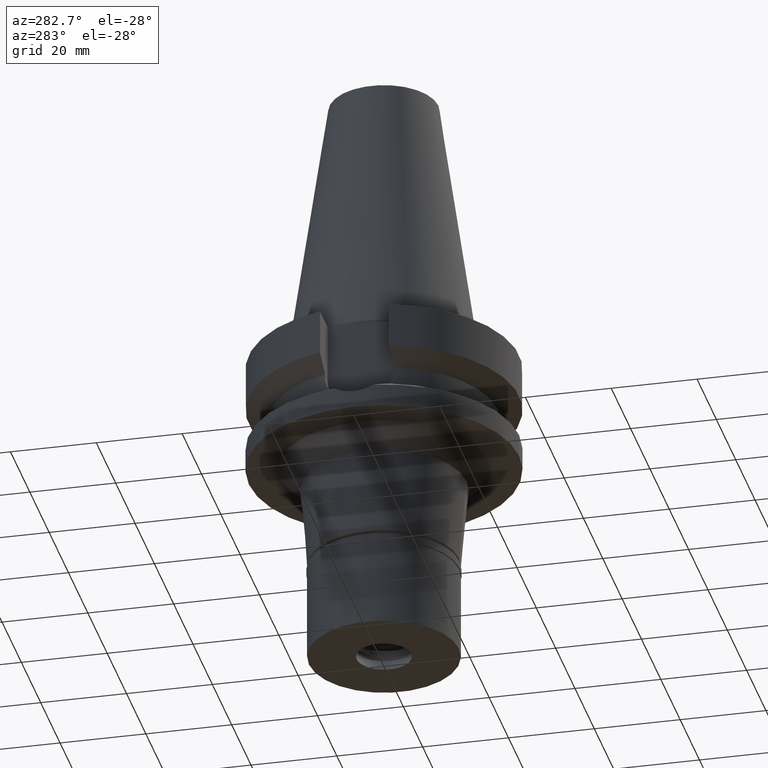
[diagram: clean part render]
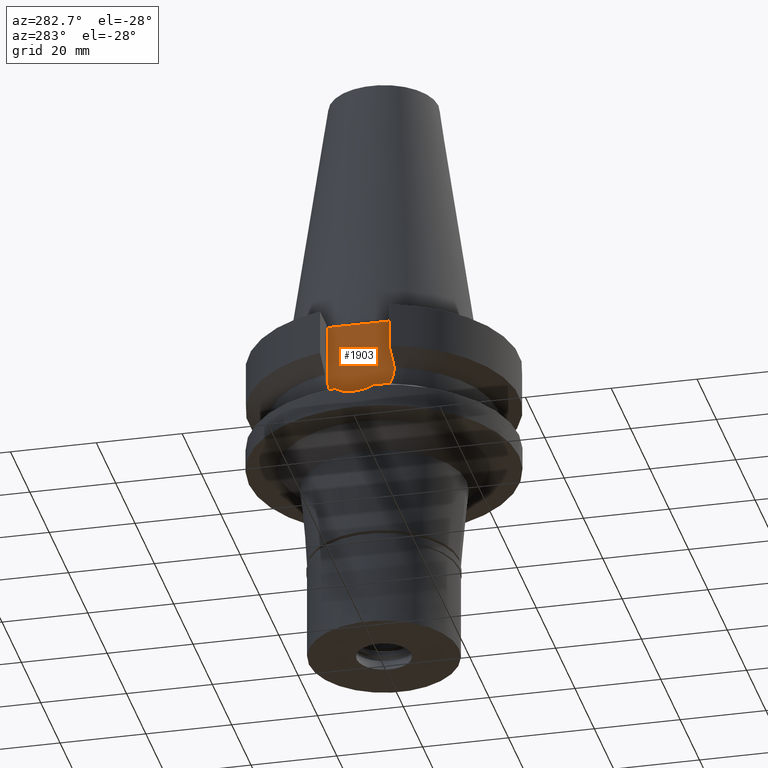
[diagram: same view with one face highlighted and labeled with its STEP entity id]
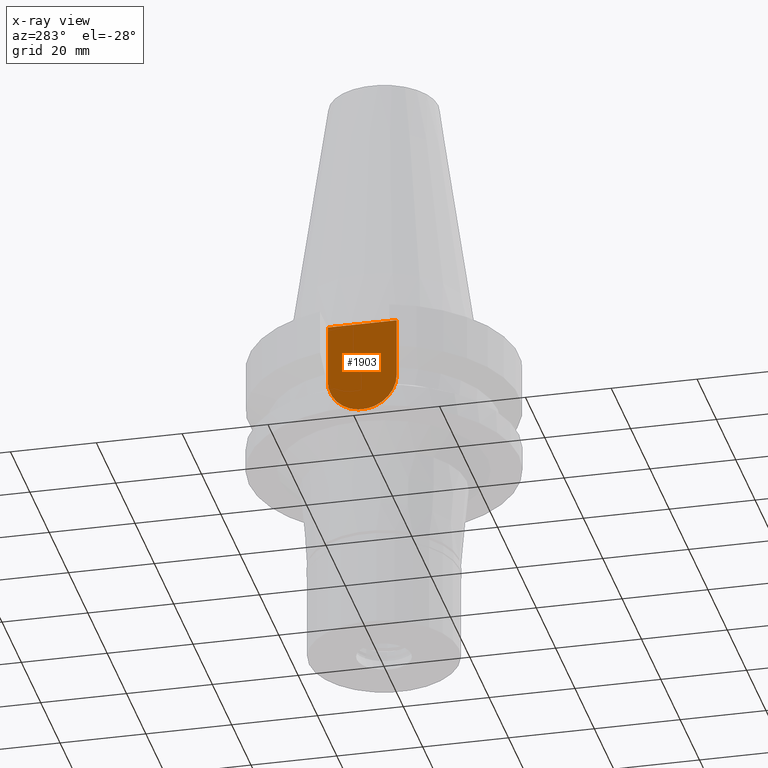
[diagram: x-ray of the same camera — body ghosted, the highlighted face saturated]
A machine part, auxiliary view. The second image highlights one B-rep face of the part: STEP entity #1903.
The next image is the same camera in x-ray: the body ghosted, the highlighted face saturated — about 0% of this face is hidden behind the body in this view.
In plain terms, the highlighted planar face has unit normal (-1, 0, 0).
Its self-contained STEP definition (entity closure, byte-faithful):
#273 = CARTESIAN_POINT ( 'NONE',  ( -22.50000000000000000, 8.050000000000000711, -14.94999999999999929 ) ) ;
#311 = VERTEX_POINT ( 'NONE', #1745 ) ;
#364 = DIRECTION ( 'NONE',  ( 1.000000000000000000, 0.0000000000000000000, 0.0000000000000000000 ) ) ;
#389 = VECTOR ( 'NONE', #1053, 1000.000000000000000 ) ;
#414 = CARTESIAN_POINT ( 'NONE',  ( -22.50000000000000000, 2.173748068486999793E-14, 0.0000000000000000000 ) ) ;
#483 = CARTESIAN_POINT ( 'NONE',  ( -22.50000000000000000, -8.050000000000000711, -14.94999999999999929 ) ) ;
#492 = VERTEX_POINT ( 'NONE', #483 ) ;
#548 = DIRECTION ( 'NONE',  ( 0.0000000000000000000, 0.0000000000000000000, -1.000000000000000000 ) ) ;
#602 = CARTESIAN_POINT ( 'NONE',  ( -22.50000000000000000, -8.050000000000000711, -1.000000000000000000 ) ) ;
#605 = CARTESIAN_POINT ( 'NONE',  ( -22.50000000000000000, 1.807578675540999863E-14, -14.94999999999999929 ) ) ;
#649 = DIRECTION ( 'NONE',  ( -1.000000000000000000, 0.0000000000000000000, 0.0000000000000000000 ) ) ;
#694 = EDGE_LOOP ( 'NONE', ( #2949, #835, #1639, #1496 ) ) ;
#835 = ORIENTED_EDGE ( 'NONE', *, *, #1792, .F. ) ;
#870 = CARTESIAN_POINT ( 'NONE',  ( -22.50000000000000000, -8.050000000000000711, -1.000000000000000000 ) ) ;
#882 = VERTEX_POINT ( 'NONE', #870 ) ;
#971 = LINE ( 'NONE', #2884, #2902 ) ;
#1053 = DIRECTION ( 'NONE',  ( 0.0000000000000000000, 1.000000000000000000, 0.0000000000000000000 ) ) ;
#1111 = EDGE_CURVE ( 'NONE', #882, #492, #971, .T. ) ;
#1291 = LINE ( 'NONE', #602, #389 ) ;
#1308 = DIRECTION ( 'NONE',  ( 0.0000000000000000000, 0.0000000000000000000, -1.000000000000000000 ) ) ;
#1355 = DIRECTION ( 'NONE',  ( 0.0000000000000000000, 0.0000000000000000000, 1.000000000000000000 ) ) ;
#1419 = AXIS2_PLACEMENT_3D ( 'NONE', #605, #364, #1308 ) ;
#1496 = ORIENTED_EDGE ( 'NONE', *, *, #2215, .T. ) ;
#1637 = DIRECTION ( 'NONE',  ( 0.0000000000000000000, 0.0000000000000000000, 1.000000000000000000 ) ) ;
#1639 = ORIENTED_EDGE ( 'NONE', *, *, #1111, .F. ) ;
#1745 = CARTESIAN_POINT ( 'NONE',  ( -22.50000000000000000, 8.050000000000000711, -1.000000000000000000 ) ) ;
#1792 = EDGE_CURVE ( 'NONE', #492, #3001, #2255, .T. ) ;
#1808 = FACE_OUTER_BOUND ( 'NONE', #694, .T. ) ;
#1884 = LINE ( 'NONE', #2558, #1957 ) ;
#1903 = ADVANCED_FACE ( 'NONE', ( #1808 ), #2521, .T. ) ;
#1947 = EDGE_CURVE ( 'NONE', #3001, #311, #1884, .T. ) ;
#1957 = VECTOR ( 'NONE', #1637, 1000.000000000000000 ) ;
#2215 = EDGE_CURVE ( 'NONE', #882, #311, #1291, .T. ) ;
#2255 = CIRCLE ( 'NONE', #1419, 8.050000000000000711 ) ;
#2521 = PLANE ( 'NONE',  #2591 ) ;
#2558 = CARTESIAN_POINT ( 'NONE',  ( -22.50000000000000000, 8.050000000000000711, -14.94999999999999929 ) ) ;
#2591 = AXIS2_PLACEMENT_3D ( 'NONE', #414, #649, #1355 ) ;
#2884 = CARTESIAN_POINT ( 'NONE',  ( -22.50000000000000000, -8.050000000000000711, -1.000000000000000000 ) ) ;
#2902 = VECTOR ( 'NONE', #548, 1000.000000000000000 ) ;
#2949 = ORIENTED_EDGE ( 'NONE', *, *, #1947, .F. ) ;
#3001 = VERTEX_POINT ( 'NONE', #273 ) ;